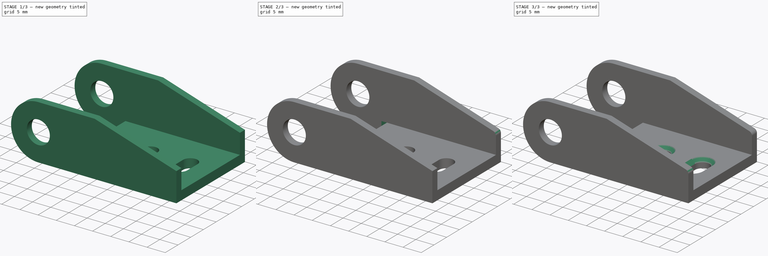
[diagram: build sequence overview — one tinted view per stage of 3, left to right]
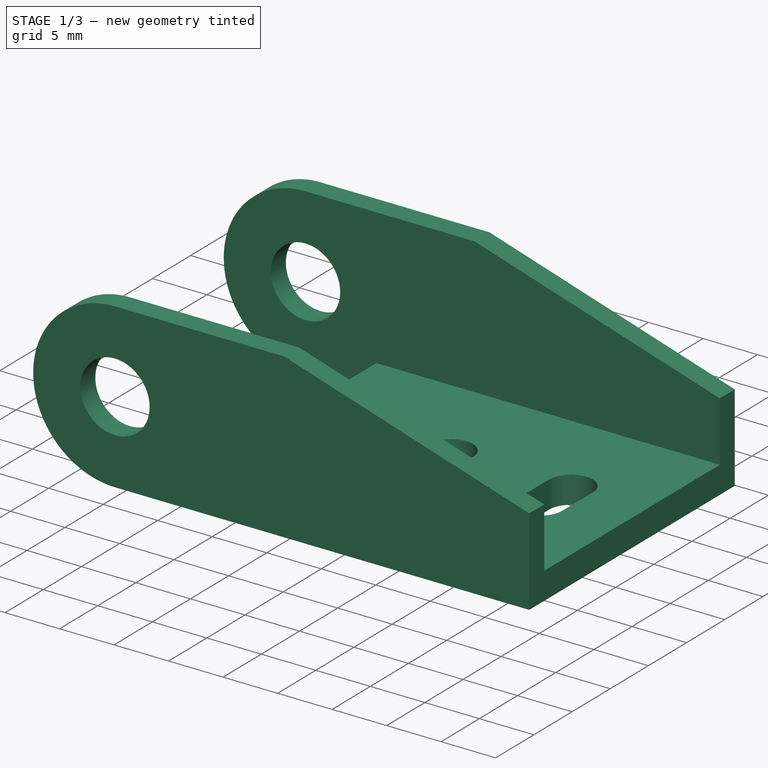
[diagram: stage 1 of 3 — iso view after this stage's code; geometry added in this stage tinted green]
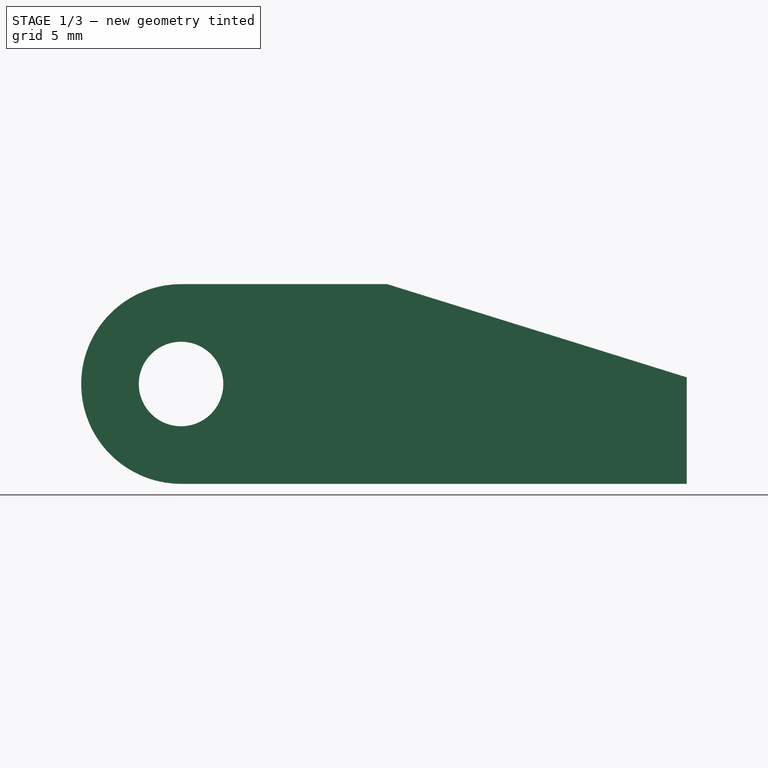
[diagram: stage 1 of 3 — front view after this stage's code; geometry added in this stage tinted green]
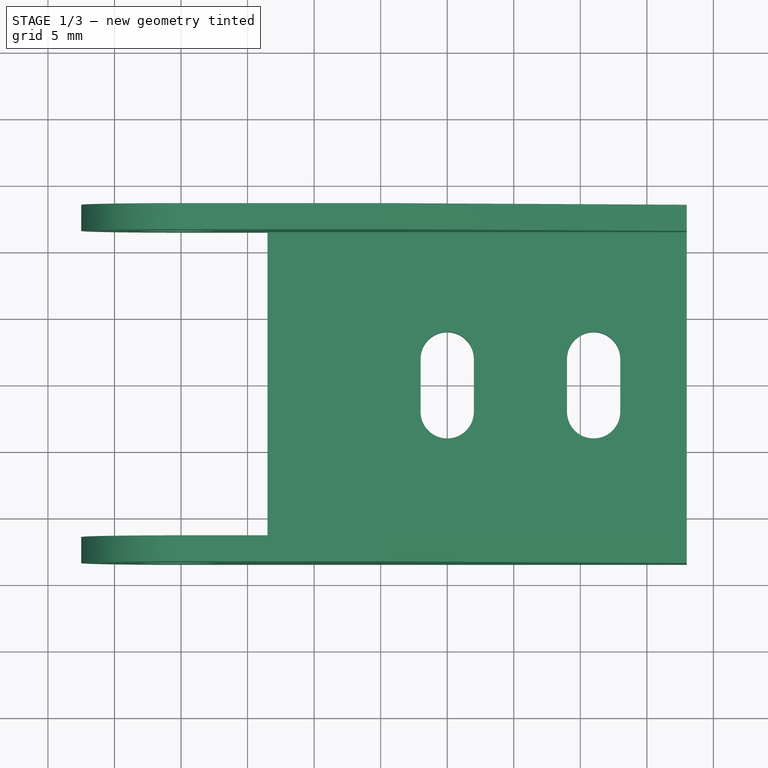
[diagram: stage 1 of 3 — top view after this stage's code; geometry added in this stage tinted green]
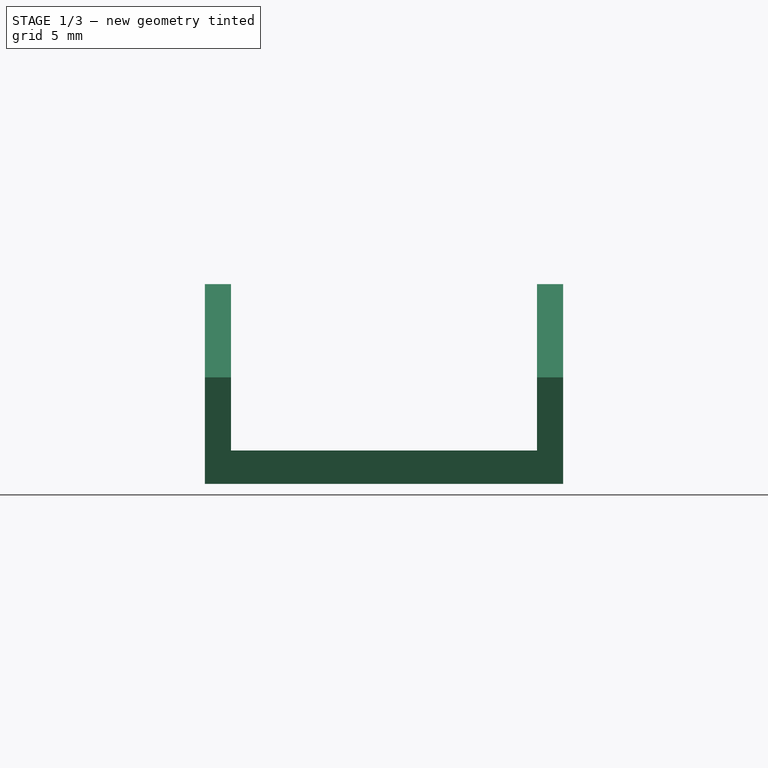
[diagram: stage 1 of 3 — right view after this stage's code; geometry added in this stage tinted green]
FCSTD DOCUMENT  (FreeCAD 1.0R39109 (Git))
Label: dragchain-start
License: All rights reserved
LicenseURL: http://en.wikipedia.org/wiki/All_rights_reserved
objects: Sketcher::SketchObject×3, PartDesign::Chamfer×3, PartDesign::Pocket×2, PartDesign::Fillet×2, PartDesign::Pad×1, PartDesign::Body×1
note: 31 computed .brp shape members not serialized (recipe doc carries the construction recipe); baked Part::Feature solids carry a one-line shape summary decoded from their .brp

FEATURE [Sketcher::SketchObject] Sketch
  ArcFitTolerance = 1e-06
  AttachmentSupport = -> [XZ_Plane]
  FullyConstrained = true
  MakeInternals = false
  MapMode = 5
  Placement = pos=(0,0,0) rot=(1,0,0;1.5708rad)
  sketch-geometry (7):
    g0: Circle CenterX=0 CenterY=0 CenterZ=0 NormalX=0 NormalY=0 NormalZ=1 AngleXU=0 Radius=3.175
    g1: ArcOfCircle CenterX=0 CenterY=0 CenterZ=0 NormalX=0 NormalY=0 NormalZ=1 AngleXU=0 Radius=7.5 StartAngle=1.5708 EndAngle=4.71239
    g2: LineSegment StartX=5e-16 StartY=7.5 StartZ=0 EndX=15.5 EndY=7.5 EndZ=0
    g3: LineSegment StartX=15.5 StartY=7.5 StartZ=0 EndX=38 EndY=0.5 EndZ=0
    g4: LineSegment StartX=38 StartY=0.5 StartZ=0 EndX=38 EndY=-7.5 EndZ=0
    g5: LineSegment StartX=38 StartY=-7.5 StartZ=0 EndX=0 EndY=-7.5 EndZ=0
    g6: GeomPoint X=-7.5 Y=0 Z=0
  constraints (20):
    c: Diameter(g1) = 15
    c: Diameter(g0) = 6.35
    c: Coincident(g0,g1)
    c: Coincident(g0,g-1)
    c: PointOnObject(g2,g1)
    c: Coincident(g2,g3)
    c: Coincident(g3,g4)
    c: Coincident(g4,g5)
    c: Horizontal(g2)
    c: Horizontal(g5)
    c: DistanceX(g5,g5) = 38
    c: Vertical(g4)
    c: Distance(g4) = 8
    c: PointOnObject(g6,g1)
    c: PointOnObject(g6,g-1)
    c: DistanceX(g6,g2) = 23
    c: Tangent(g1,g5) = 1.5708
    c: PointOnObject(g1,g2)
    c: PointOnObject(g2,g-2)
    c: Coincident(g1,g2)
FEATURE [PartDesign::Pad] Pad
  Direction = (0,-1,2e-16)
  Length = 26.924
  Length2 = 10
  Midplane = true
  Placement = pos=(0,0,0) rot=(1,0,0;1.5708rad)
  Profile = -> Sketch
  ReferenceAxis = -> Sketch [N_Axis]
  Suppressed = false
  Type = 0
FEATURE [Sketcher::SketchObject] Sketch002
  ArcFitTolerance = 1e-06
  AttachmentSupport = -> [YZ_Plane]
  FullyConstrained = true
  MakeInternals = false
  MapMode = 5
  Placement = pos=(0,0,0) rot=(0.57735,0.57735,0.57735;2.0944rad)
  sketch-geometry (4):
    g0: LineSegment StartX=-11.5 StartY=8 StartZ=0 EndX=-11.5 EndY=-5 EndZ=0
    g1: LineSegment StartX=-11.5 StartY=-5 StartZ=0 EndX=11.5 EndY=-5 EndZ=0
    g2: LineSegment StartX=11.5 StartY=-5 StartZ=0 EndX=11.5 EndY=8 EndZ=0
    g3: LineSegment StartX=11.5 StartY=8 StartZ=0 EndX=-11.5 EndY=8 EndZ=0
  constraints (11):
    c: Coincident(g0,g1)
    c: Coincident(g1,g2)
    c: Coincident(g2,g3)
    c: Coincident(g3,g0)
    c: Vertical(g0)
    c: Vertical(g2)
    c: Horizontal(g1)
    c: DistanceY(g1,g-1) = 5
    c: Symmetric(g0,g2,g-2)
    c: DistanceX(g3,g3) = 23
    c: DistanceY(g-1,g2) = 8
FEATURE [PartDesign::Pocket] Pocket
  BaseFeature = -> Pad
  Direction = (-1,0,0)
  Length = 5
  Length2 = 5
  Midplane = true
  Placement = pos=(0,0,0) rot=(1,0,0;1.5708rad)
  Profile = -> Sketch002
  ReferenceAxis = -> Sketch002 [N_Axis]
  Suppressed = false
  Type = 1
FEATURE [Sketcher::SketchObject] Sketch001
  ArcFitTolerance = 1e-06
  AttachmentSupport = -> [XY_Plane]
  ExternalGeometry = -> [Pocket]
  FullyConstrained = true
  MakeInternals = false
  MapMode = 5
  sketch-geometry (20):
    g0: LineSegment StartX=6.5 StartY=11.5 StartZ=0 EndX=6.5 EndY=-11.5 EndZ=0
    g1: LineSegment StartX=6.5 StartY=-11.5 StartZ=0 EndX=-7.5 EndY=-11.5 EndZ=0
    g2: LineSegment StartX=-7.5 StartY=-11.5 StartZ=0 EndX=-7.5 EndY=11.5 EndZ=0
    g3: LineSegment StartX=-7.5 StartY=11.5 StartZ=0 EndX=6.5 EndY=11.5 EndZ=0
    g4: LineSegment StartX=18 StartY=2 StartZ=0 EndX=18 EndY=-2 EndZ=0
    g5: LineSegment StartX=22 StartY=-2 StartZ=0 EndX=22 EndY=2 EndZ=0
    g6: LineSegment StartX=29 StartY=2 StartZ=0 EndX=29 EndY=-2 EndZ=0
    g7: ArcOfCircle CenterX=20 CenterY=2 CenterZ=0 NormalX=0 NormalY=0 NormalZ=1 AngleXU=0 Radius=2 StartAngle=0 EndAngle=3.14159
    g8: ArcOfCircle CenterX=31 CenterY=2 CenterZ=0 NormalX=0 NormalY=0 NormalZ=1 AngleXU=0 Radius=2 StartAngle=0 EndAngle=3.14159
    g9: ArcOfCircle CenterX=31 CenterY=-2 CenterZ=0 NormalX=0 NormalY=0 NormalZ=1 AngleXU=0 Radius=2 StartAngle=3.14159 EndAngle=6.28319
    g10: ArcOfCircle CenterX=20 CenterY=-2 CenterZ=0 NormalX=0 NormalY=0 NormalZ=1 AngleXU=0 Radius=2 StartAngle=3.14159 EndAngle=6.28319
    g11: LineSegment StartX=33 StartY=2 StartZ=0 EndX=33 EndY=-2 EndZ=0
    g12: GeomPoint X=31 Y=0 Z=0
    g13: GeomPoint X=20 Y=4 Z=0
    g14: GeomPoint X=20 Y=-4 Z=0
    g15: LineSegment [constr] StartX=20 StartY=4 StartZ=0 EndX=20 EndY=-4 EndZ=0
    g16: LineSegment [constr] StartX=31 StartY=2 StartZ=0 EndX=31 EndY=-2 EndZ=0
    g17: GeomPoint [constr] X=20 Y=0 Z=0
    g18: LineSegment [constr] StartX=38 StartY=13.462 StartZ=0 EndX=38 EndY=-13.462 EndZ=0
    g19: GeomPoint [constr] X=38 Y=0 Z=0
  constraints (45):
    c: Coincident(g0,g1)
    c: Coincident(g1,g2)
    c: Coincident(g2,g3)
    c: Coincident(g3,g0)
    c: Coincident(g6,g9)
    c: Tangent(g8,g6) = -1.5708
    c: Vertical(g6)
    c: Tangent(g4,g7) = -1.5708
    c: Tangent(g4,g10) = -1.5708
    c: Equal(g7,g10)
    c: Diameter(g8) = 4
    c: Vertical(g11)
    c: Tangent(g11,g9) = 1.5708
    c: PointOnObject(g13,g7)
    c: PointOnObject(g14,g10)
    c: Coincident(g15,g13)
    c: Coincident(g15,g14)
    c: Vertical(g15)
    c: PointOnObject(g7,g15)
    c: DistanceY(g10,g7) = 4
    c: Diameter(g7) = 4
    c: Tangent(g5,g7) = -1.5708
    c: Tangent(g11,g8) = 1.5708
    c: DistanceY(g9,g8) = 4
    c: Coincident(g16,g8)
    c: Coincident(g16,g9)
    c: Symmetric(g8,g9,g-1)
    c: Symmetric(g7,g10,g-1)
    c: Tangent(g10,g5) = -1.5708
    c: PointOnObject(g12,g-1)
    c: PointOnObject(g12,g16)
    c: PointOnObject(g17,g15)
    c: PointOnObject(g17,g-1)
    c: Coincident(g18,g-3)
    c: Coincident(g18,g-4)
    c: PointOnObject(g19,g-1)
    c: PointOnObject(g19,g18)
    c: DistanceX(g12,g19) = 7
    c: DistanceX(g17,g19) = 18
    c: Symmetric(g2,g1,g-1)
    c: Horizontal(g1)
    c: Horizontal(g3)
    c: Coincident(g-5,g2)
    c: Vertical(g0)
    c: DistanceX(g2,g0) = 14
FEATURE [PartDesign::Pocket] Pocket001
  BaseFeature = -> Pocket
  Direction = (0,0,-1)
  Length = 5
  Length2 = 5
  Midplane = true
  Placement = pos=(0,0,0) rot=(1,0,0;1.5708rad)
  Profile = -> Sketch001
  ReferenceAxis = -> Sketch001 [N_Axis]
  Suppressed = false
  Type = 1
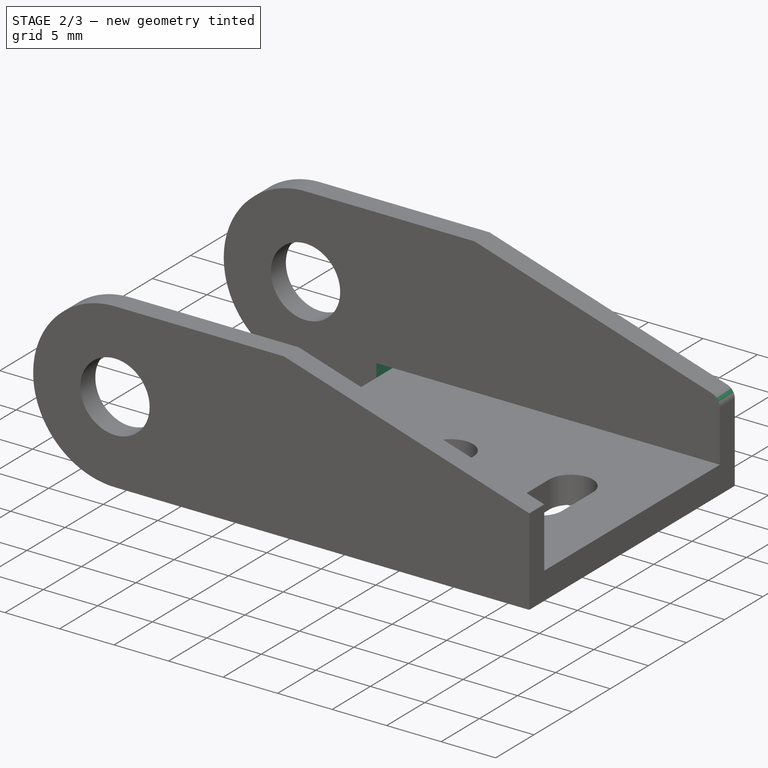
[diagram: stage 2 of 3 — iso view after this stage's code; geometry added in this stage tinted green]
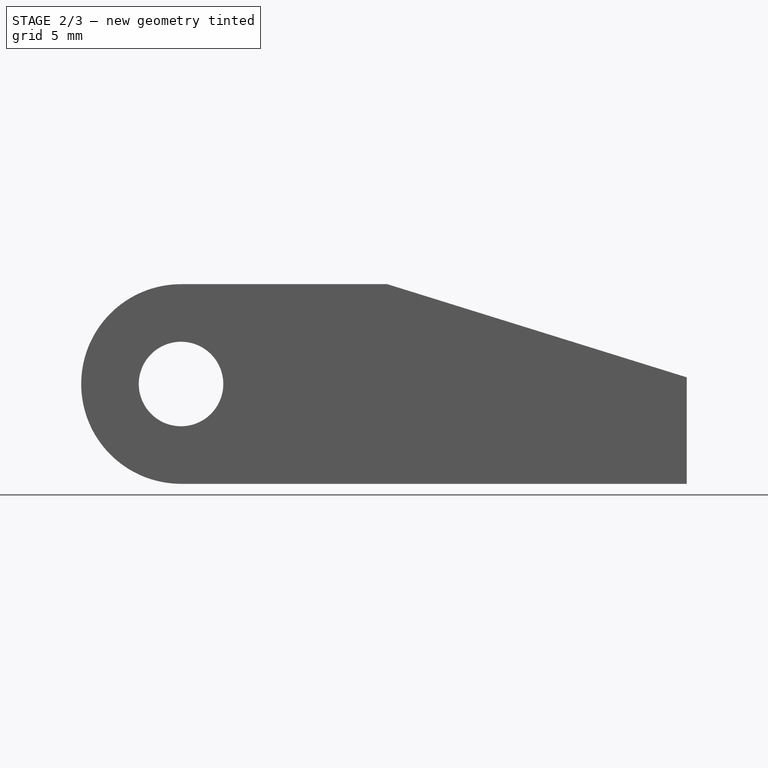
[diagram: stage 2 of 3 — front view after this stage's code; geometry added in this stage tinted green]
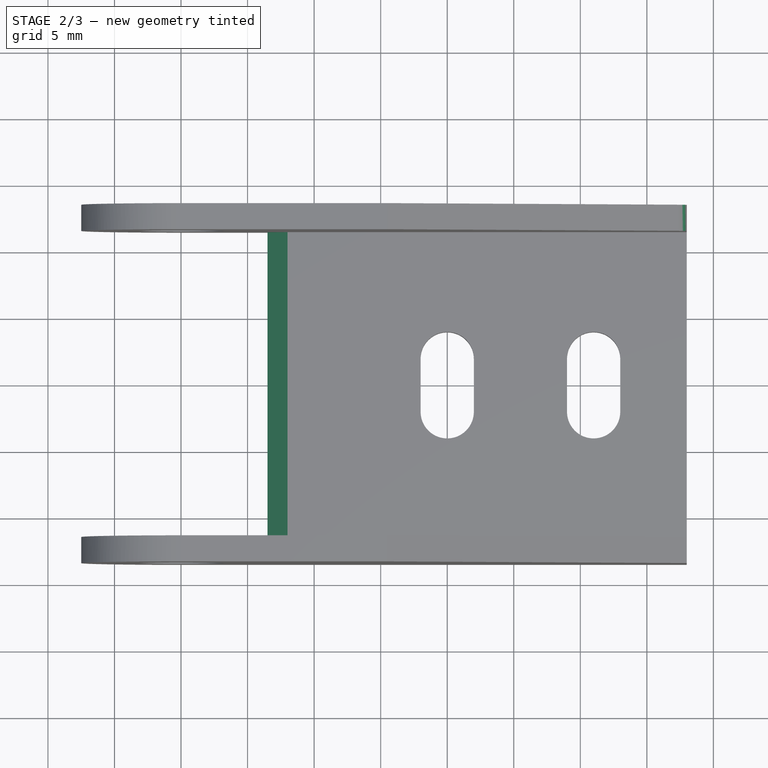
[diagram: stage 2 of 3 — top view after this stage's code; geometry added in this stage tinted green]
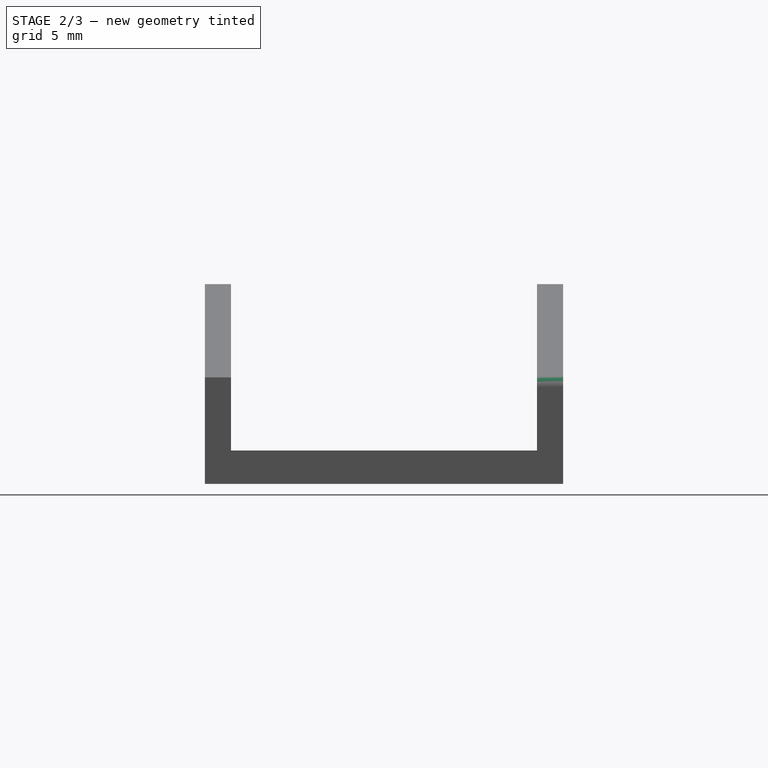
[diagram: stage 2 of 3 — right view after this stage's code; geometry added in this stage tinted green]
FEATURE [PartDesign::Chamfer] Chamfer
  Angle = 45
  Base = -> Pocket001 [Edge41]
  BaseFeature = -> Pocket001
  ChamferType = 0
  FlipDirection = false
  Placement = pos=(0,0,0) rot=(1,0,0;1.5708rad)
  Size = 1.5
  Size2 = 1
  SupportTransform = false
  Suppressed = false
  UseAllEdges = false
FEATURE [PartDesign::Fillet] Fillet
  Base = -> Chamfer [Edge54]
  BaseFeature = -> Chamfer
  Placement = pos=(0,0,0) rot=(1,0,0;1.5708rad)
  Radius = 1.016
  SupportTransform = false
  Suppressed = false
  UseAllEdges = false
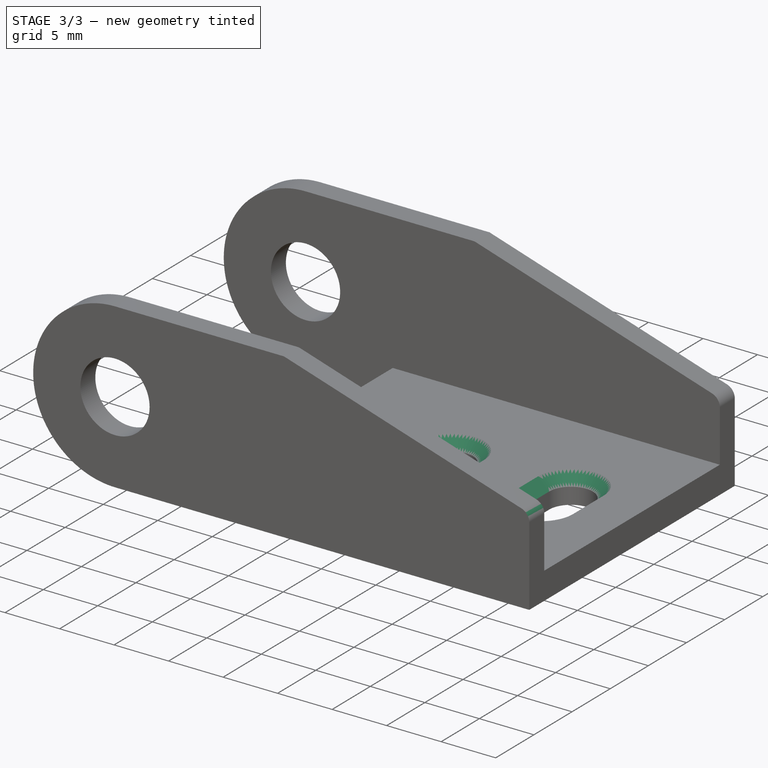
[diagram: stage 3 of 3 — iso view after this stage's code; geometry added in this stage tinted green]
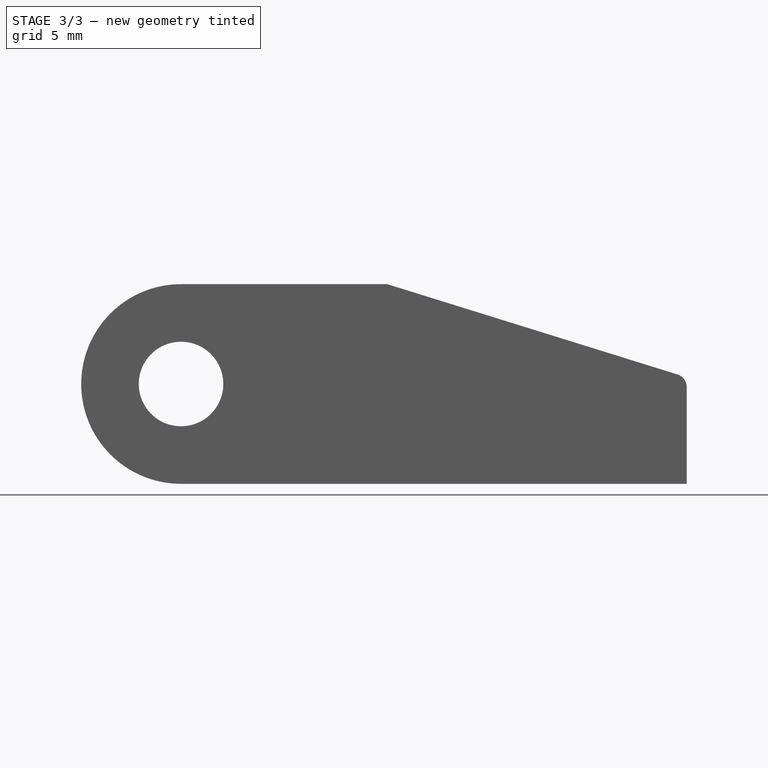
[diagram: stage 3 of 3 — front view after this stage's code; geometry added in this stage tinted green]
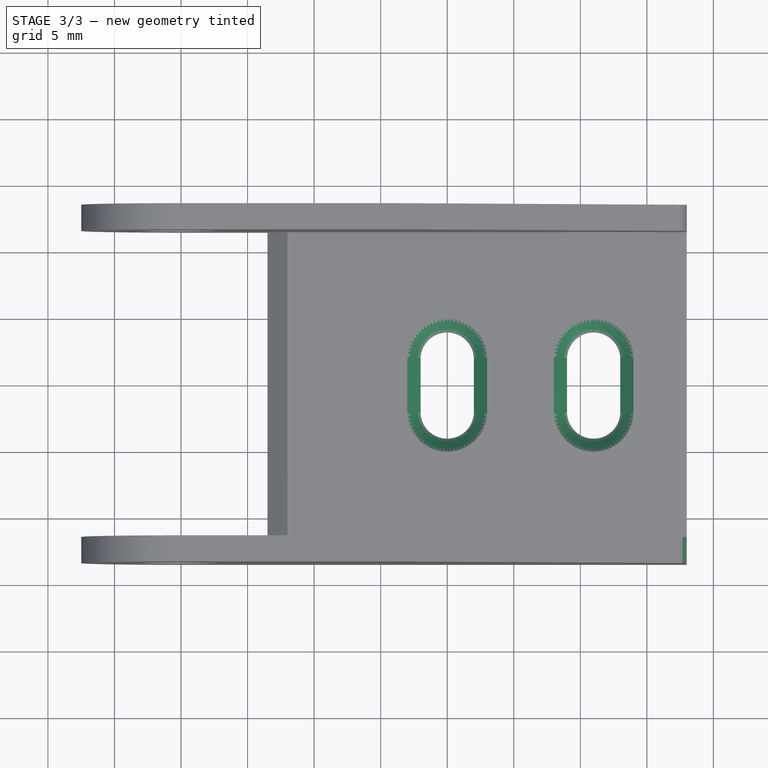
[diagram: stage 3 of 3 — top view after this stage's code; geometry added in this stage tinted green]
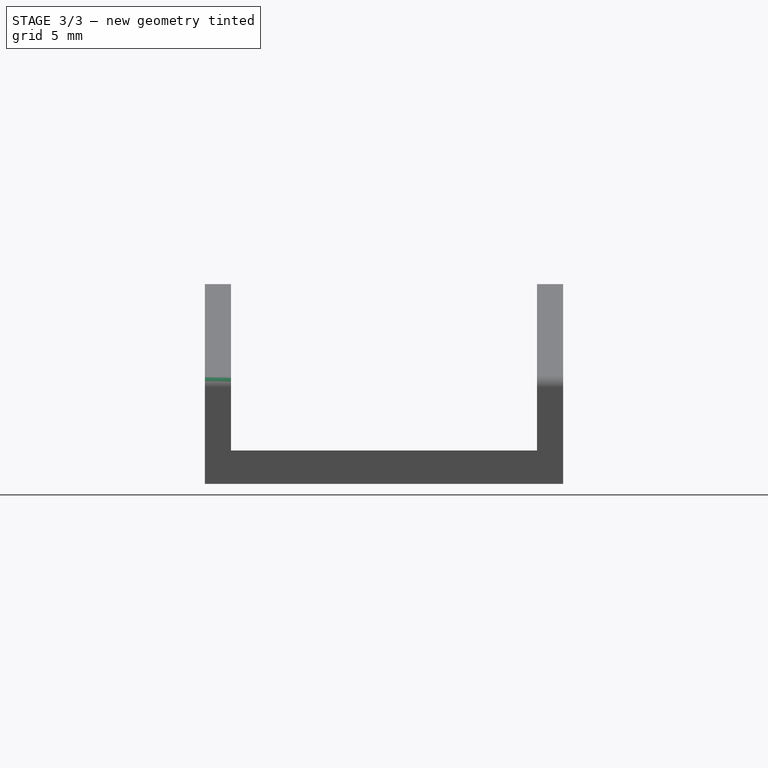
[diagram: stage 3 of 3 — right view after this stage's code; geometry added in this stage tinted green]
FEATURE [PartDesign::Fillet] Fillet001
  Base = -> Fillet [Edge14]
  BaseFeature = -> Fillet
  Placement = pos=(0,0,0) rot=(1,0,0;1.5708rad)
  Radius = 1.016
  SupportTransform = false
  Suppressed = false
  UseAllEdges = false
FEATURE [PartDesign::Chamfer] Chamfer001
  Angle = 45
  Base = -> Fillet001 [Edge48,Edge49,Edge50,Edge51]
  BaseFeature = -> Fillet001
  ChamferType = 0
  FlipDirection = false
  Placement = pos=(0,0,0) rot=(1,0,0;1.5708rad)
  Size = 1
  Size2 = 1
  SupportTransform = false
  Suppressed = false
  UseAllEdges = false
FEATURE [PartDesign::Chamfer] Chamfer002
  Angle = 45
  Base = -> Chamfer001 [Edge11,Edge10,Edge9,Edge12]
  BaseFeature = -> Chamfer001
  ChamferType = 0
  FlipDirection = false
  Placement = pos=(0,0,0) rot=(1,0,0;1.5708rad)
  Size = 1
  Size2 = 1
  SupportTransform = false
  Suppressed = false
  UseAllEdges = false
FEATURE [PartDesign::Body] Body
  AllowCompound = false
  Group = -> [Sketch,Pad,Sketch001,Sketch002,Pocket,Pocket001,Chamfer,Fillet,Fillet001,Chamfer001,Chamfer002]
  Origin = -> Origin
  Tip = -> Chamfer002
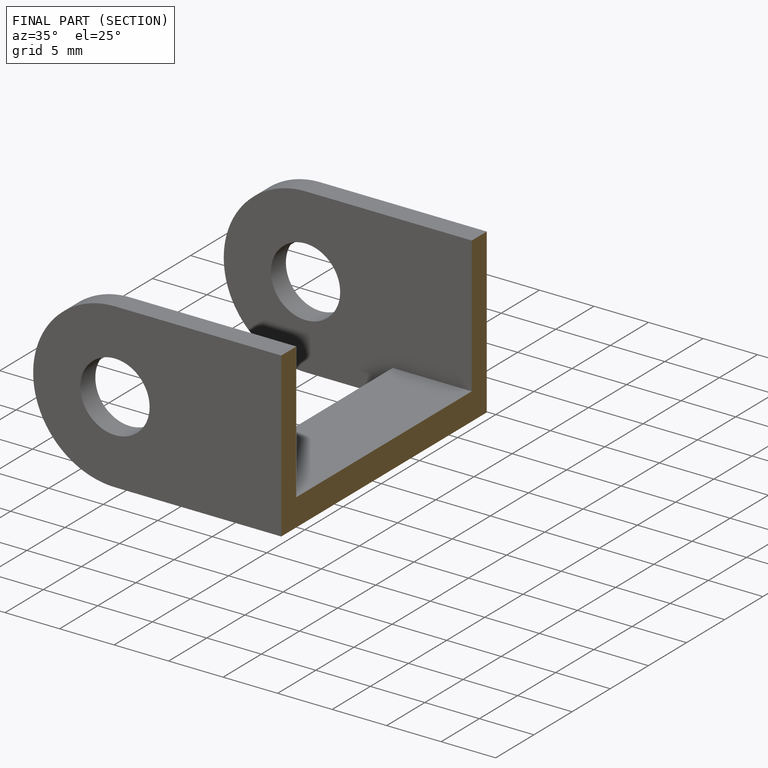
[diagram: finished part — half-section view (interior)]
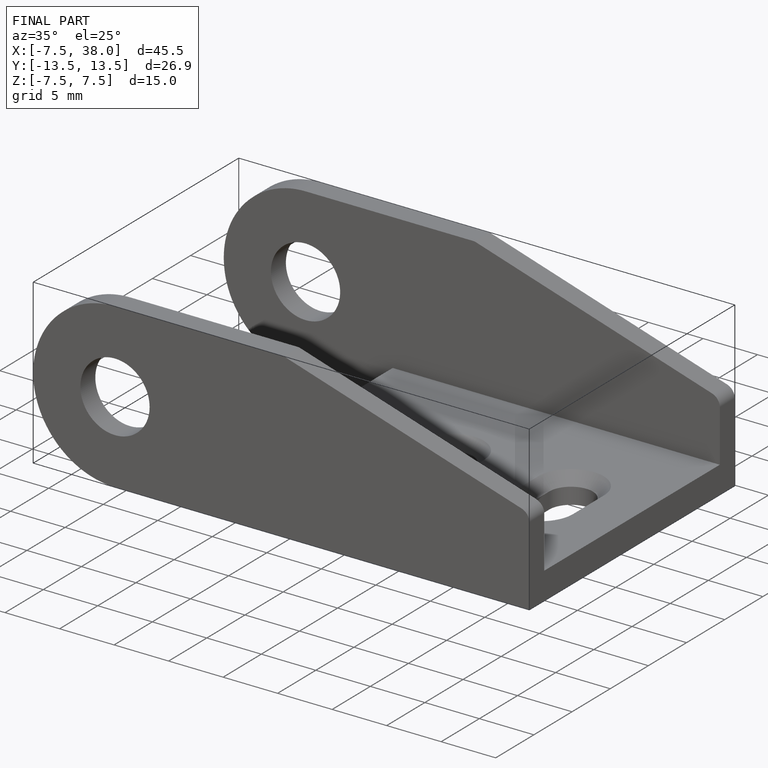
[diagram: finished part — iso view with bounding-box wireframe]
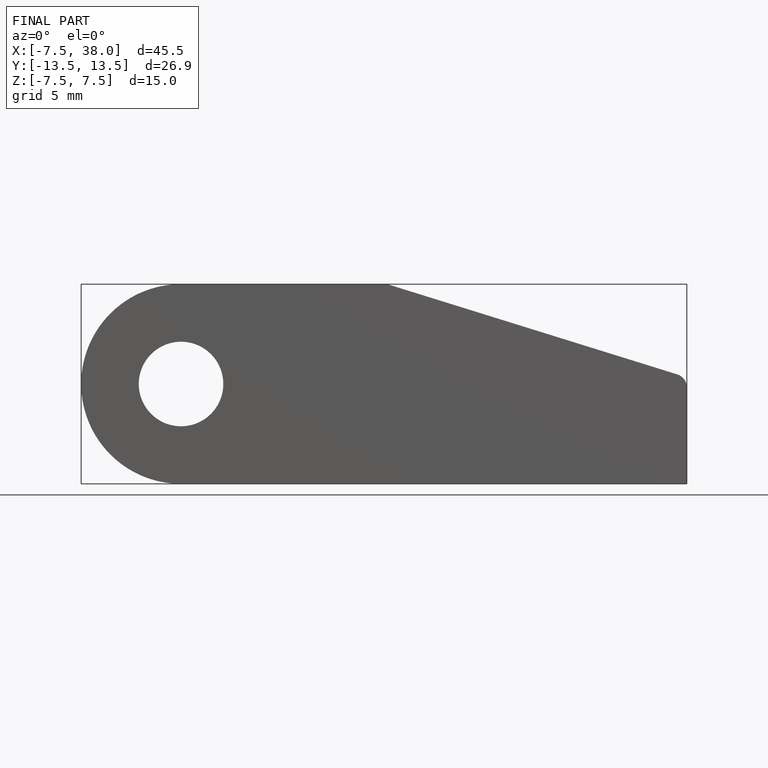
[diagram: finished part — front view with bounding-box wireframe]
